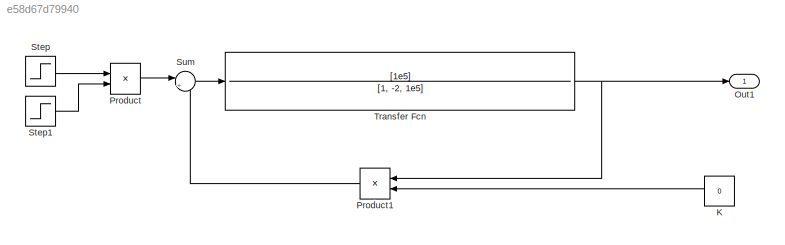
MODEL slx_e58d67d79940
KIND model
CONFIG AbsTol = auto
CONFIG EnableMultiTasking = off
CONFIG FixedStep = 0.001
CONFIG MaxStep = auto
CONFIG MinStep = auto
CONFIG RelTol = 1e-3
CONFIG SampleTimeConstraint = Unconstrained
CONFIG SolverName = ode4
CONFIG StartTime = 0.0
CONFIG StopTime = 0.001
BLOCK [Constant] K
  Value = 0
BLOCK [Outport] Out1
BLOCK [Product] Product
  Ports = [2, 1]
BLOCK [Product] Product1
  Ports = [2, 1]
BLOCK [Step] Step
  SampleTime = 0
  Time = 0.1
BLOCK [Step] Step1
  After = 0
  Before = 1
  SampleTime = 0
  Time = 0.11
BLOCK [Sum] Sum
  Inputs = |+-
  Ports = [2, 1]
BLOCK [TransferFcn] Transfer Fcn
  Denominator = [1, -2, 1e5]
  Numerator = [1e5]
LINE K:1 -> Product1:2
LINE Product1:1 -> Sum:2
LINE Product:1 -> Sum:1
LINE Step1:1 -> Product:2
LINE Step:1 -> Product:1
LINE Sum:1 -> Transfer Fcn:1
NET Transfer Fcn:1 -> Out1:1, Product1:1
note: NET lines group one-source signal fan-out (src -> all destinations, sorted); 1:1 wires keep LINE
